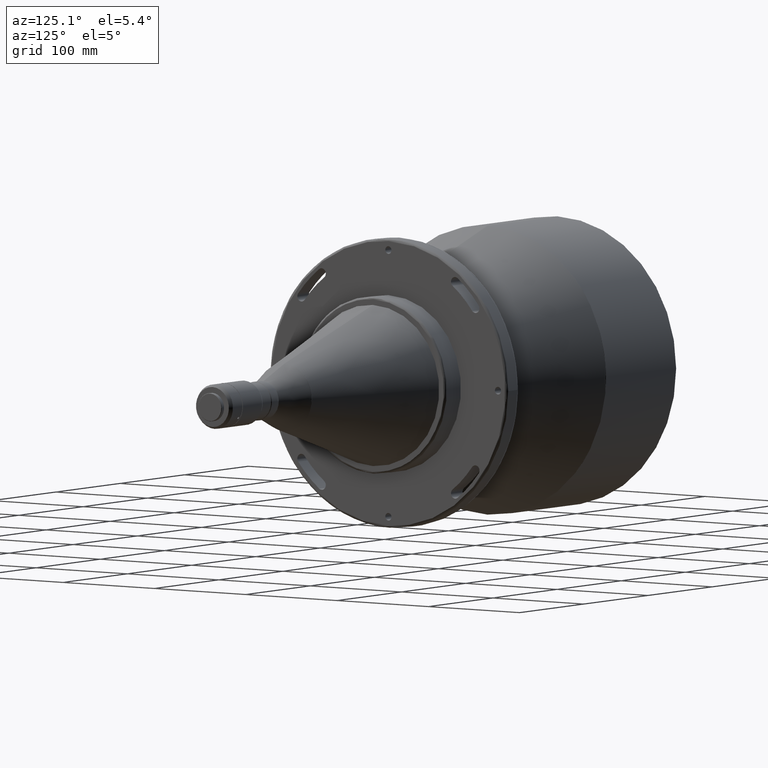
[diagram: clean part render]
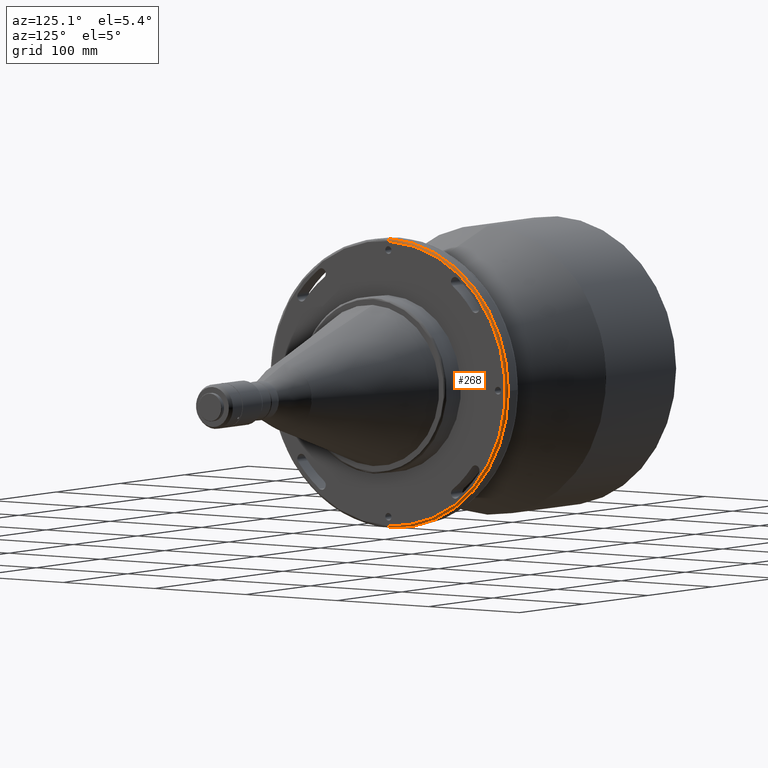
[diagram: same view with one face highlighted and labeled with its STEP entity id]
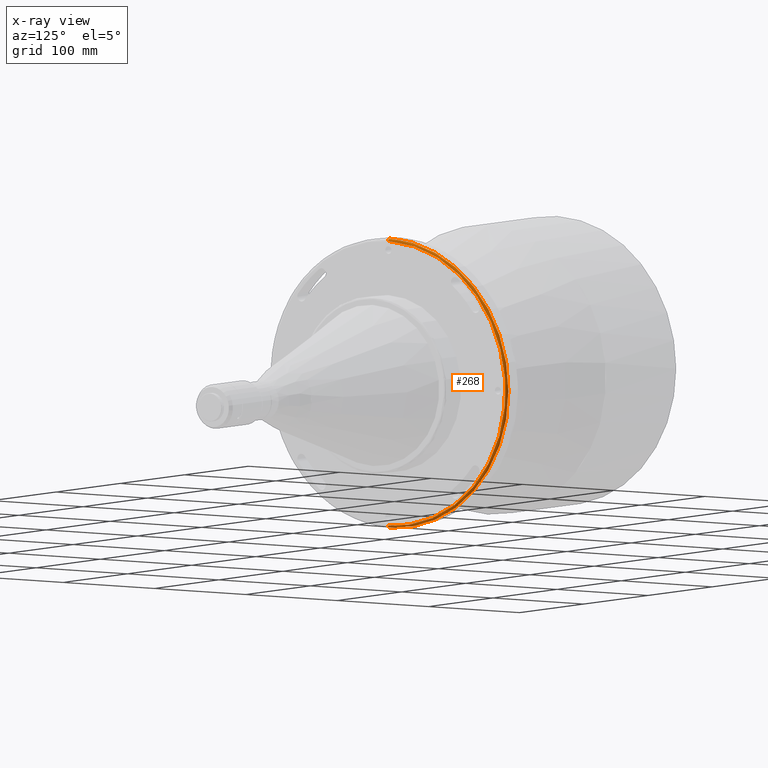
[diagram: x-ray of the same camera — body ghosted, the highlighted face saturated]
A machine part, auxiliary view. The second image highlights one B-rep face of the part: STEP entity #268.
The next image is the same camera in x-ray: the body ghosted, the highlighted face saturated — about 0% of this face is hidden behind the body in this view.
In plain terms, the highlighted face is a freeform B-spline surface patch.
Its self-contained STEP definition (entity closure, byte-faithful):
#5 = VERTEX_POINT ( 'NONE', #312 ) ;
#78 = CARTESIAN_POINT ( 'NONE',  ( -6.849999999681512200, 256.0000000018774200, -128.0000000012986400 ) ) ;
#130 = CARTESIAN_POINT ( 'NONE',  ( -8.849999999720671100, -3.999516856048957800E-008, -130.0000000000796400 ) ) ;
#148 = CARTESIAN_POINT ( 'NONE',  ( -6.859991668999999300, 0.0000000000000000000, -127.8003331669999900 ) ) ;
#157 = ORIENTED_EDGE ( 'NONE', *, *, #3290, .T. ) ;
#172 = DIRECTION ( 'NONE',  ( 1.000000000000000000, -0.0000000000000000000, -0.0000000000000000000 ) ) ;
#194 = EDGE_CURVE ( 'NONE', #279, #2828, #2457, .T. ) ;
#212 = CARTESIAN_POINT ( 'NONE',  ( -8.849999999720671100, -1.167317169573529500E-008, 130.0000000000796400 ) ) ;
#268 = ADVANCED_FACE ( 'NONE', ( #2387 ), #1656, .T. ) ;
#279 = VERTEX_POINT ( 'NONE', #130 ) ;
#312 = CARTESIAN_POINT ( 'NONE',  ( -6.849999999808906300, 0.0000000000000000000, -127.9999999753477500 ) ) ;
#348 = DIRECTION ( 'NONE',  ( 1.000000000000000000, -0.0000000000000000000, -0.0000000000000000000 ) ) ;
#357 = CARTESIAN_POINT ( 'NONE',  ( -6.849999999681512200, 256.0000000018774200, 128.0000000012986400 ) ) ;
#458 = VERTEX_POINT ( 'NONE', #2088 ) ;
#619 = CARTESIAN_POINT ( 'NONE',  ( -6.850000000925546400, 0.0000000000000000000, -129.1715728749336700 ) ) ;
#653 = CARTESIAN_POINT ( 'NONE',  ( -7.689892470000000200, 0.0000000000000000000, 130.1264408450000500 ) ) ;
#748 =( BOUNDED_CURVE ( )  B_SPLINE_CURVE ( 3, ( #1910, #1887, #619, #2419 ),
 .UNSPECIFIED., .F., .F. ) 
 B_SPLINE_CURVE_WITH_KNOTS ( ( 4, 4 ),
 ( 0.06314145700000076100, 0.9368585429999943800 ),
 .UNSPECIFIED. ) 
 CURVE ( )  GEOMETRIC_REPRESENTATION_ITEM ( )  RATIONAL_B_SPLINE_CURVE ( ( 0.9565783021659931600, 0.7697947703959773200, 0.7697947703959764400, 0.9565783021659899400 ) ) 
 REPRESENTATION_ITEM ( '' )  );
#799 =( BOUNDED_CURVE ( )  B_SPLINE_CURVE ( 3, ( #3159, #357, #78, #863 ),
 .UNSPECIFIED., .F., .F. ) 
 B_SPLINE_CURVE_WITH_KNOTS ( ( 4, 4 ),
 ( 0.0000000000000000000, 1.000000000000000000 ),
 .UNSPECIFIED. ) 
 CURVE ( )  GEOMETRIC_REPRESENTATION_ITEM ( )  RATIONAL_B_SPLINE_CURVE ( ( 0.9565783021300933200, 0.3188594340433640900, 0.3188594340433640900, 0.9565783021300933200 ) ) 
 REPRESENTATION_ITEM ( '' )  );
#863 = CARTESIAN_POINT ( 'NONE',  ( -6.849999999808906300, 0.0000000000000000000, -127.9999999753477500 ) ) ;
#910 = CARTESIAN_POINT ( 'NONE',  ( -7.689892470000001100, 260.2528816910000800, -130.1264408450000200 ) ) ;
#941 = CARTESIAN_POINT ( 'NONE',  ( -7.689892470000000200, 0.0000000000000000000, -130.1264408450000500 ) ) ;
#1115 = ORIENTED_EDGE ( 'NONE', *, *, #3040, .T. ) ;
#1155 = CARTESIAN_POINT ( 'NONE',  ( -9.049666833000001600, 0.0000000000000000000, 129.9900083310000100 ) ) ;
#1166 = DIRECTION ( 'NONE',  ( 1.734723475976807100E-016, 0.0000000000000000000, 1.000000000000000000 ) ) ;
#1174 = CIRCLE ( 'NONE', #2883, 130.0000000000000000 ) ;
#1178 = CARTESIAN_POINT ( 'NONE',  ( -7.689892470000001100, 260.2528816910000800, 130.1264408450000200 ) ) ;
#1191 = CARTESIAN_POINT ( 'NONE',  ( -6.723559155000000200, 258.3202150609998900, -129.1601075300000000 ) ) ;
#1193 = EDGE_LOOP ( 'NONE', ( #1428, #157, #2604, #1115, #3205 ) ) ;
#1222 = VERTEX_POINT ( 'NONE', #1904 ) ;
#1409 = CARTESIAN_POINT ( 'NONE',  ( -8.850000000000024500, 0.0000000000000000000, 0.0000000000000000000 ) ) ;
#1422 = CARTESIAN_POINT ( 'NONE',  ( -6.723559154999999300, 0.0000000000000000000, -129.1601075300000000 ) ) ;
#1428 = ORIENTED_EDGE ( 'NONE', *, *, #194, .T. ) ;
#1441 = CARTESIAN_POINT ( 'NONE',  ( -6.723559154999999300, 0.0000000000000000000, 129.1601075300000000 ) ) ;
#1581 = AXIS2_PLACEMENT_3D ( 'NONE', #1409, #348, #1659 ) ;
#1656 =( BOUNDED_SURFACE ( )  B_SPLINE_SURFACE ( 3, 3, ( 
 ( #1155, #2218, #2436, #2695 ),
 ( #653, #1178, #910, #941 ),
 ( #1441, #2448, #1191, #1422 ),
 ( #3201, #2684, #1693, #148 ) ),
 .UNSPECIFIED., .F., .F., .F. ) 
 B_SPLINE_SURFACE_WITH_KNOTS ( ( 4, 4 ),
 ( 4, 4 ),
 ( 0.0000000000000000000, 1.000000000000000000 ),
 ( 0.0000000000000000000, 1.000000000000000000 ),
 .UNSPECIFIED. ) 
 GEOMETRIC_REPRESENTATION_ITEM ( )  RATIONAL_B_SPLINE_SURFACE ( (
 ( 1.000000000000000000, 0.3333333333333330400, 0.3333333333333330400, 1.000000000000000000),
 ( 0.7553208711179740800, 0.2517736237059909900, 0.2517736237059909900, 0.7553208711179740800),
 ( 0.7553208711179740800, 0.2517736237059909900, 0.2517736237059909900, 0.7553208711179740800),
 ( 1.000000000000000000, 0.3333333333333330400, 0.3333333333333330400, 1.000000000000000000) ) ) 
 REPRESENTATION_ITEM ( '' )  SURFACE ( )  );
#1659 = DIRECTION ( 'NONE',  ( 1.734723475976807100E-016, 1.776356839400250500E-015, 1.000000000000000000 ) ) ;
#1693 = CARTESIAN_POINT ( 'NONE',  ( -6.859991669000000200, 255.6006663329999600, -127.8003331670000100 ) ) ;
#1887 = CARTESIAN_POINT ( 'NONE',  ( -7.678427125066346700, 0.0000000000000000000, -129.9999999990745300 ) ) ;
#1904 = CARTESIAN_POINT ( 'NONE',  ( -6.849999999808906300, 0.0000000000000000000, 127.9999999753477200 ) ) ;
#1910 = CARTESIAN_POINT ( 'NONE',  ( -8.849999999720671100, -3.999516856048957800E-008, -130.0000000000796400 ) ) ;
#2017 =( BOUNDED_CURVE ( )  B_SPLINE_CURVE ( 3, ( #2516, #2299, #3046, #212 ),
 .UNSPECIFIED., .F., .F. ) 
 B_SPLINE_CURVE_WITH_KNOTS ( ( 4, 4 ),
 ( 0.06314145699996727400, 0.9368585429999994900 ),
 .UNSPECIFIED. ) 
 CURVE ( )  GEOMETRIC_REPRESENTATION_ITEM ( )  RATIONAL_B_SPLINE_CURVE ( ( 0.9565783021660142500, 0.7697947703959763200, 0.7697947703959692200, 0.9565783021659931600 ) ) 
 REPRESENTATION_ITEM ( '' )  );
#2088 = CARTESIAN_POINT ( 'NONE',  ( -8.849999999720671100, -1.167317169573529500E-008, 130.0000000000796400 ) ) ;
#2090 = CARTESIAN_POINT ( 'NONE',  ( -8.850000000000024500, 130.0000000000000000, 1.592040838891559500E-014 ) ) ;
#2218 = CARTESIAN_POINT ( 'NONE',  ( -9.049666833000001600, 259.9800166609998700, 129.9900083310000100 ) ) ;
#2299 = CARTESIAN_POINT ( 'NONE',  ( -6.850000000925473600, 0.0000000000000000000, 129.1715728749335900 ) ) ;
#2387 = FACE_OUTER_BOUND ( 'NONE', #1193, .T. ) ;
#2419 = CARTESIAN_POINT ( 'NONE',  ( -6.849999999808906300, 0.0000000000000000000, -127.9999999753477500 ) ) ;
#2436 = CARTESIAN_POINT ( 'NONE',  ( -9.049666833000001600, 259.9800166609998700, -129.9900083310000100 ) ) ;
#2448 = CARTESIAN_POINT ( 'NONE',  ( -6.723559155000000200, 258.3202150609998900, 129.1601075300000000 ) ) ;
#2457 = CIRCLE ( 'NONE', #1581, 130.0000000000000000 ) ;
#2516 = CARTESIAN_POINT ( 'NONE',  ( -6.849999999808906300, 0.0000000000000000000, 127.9999999753477200 ) ) ;
#2604 = ORIENTED_EDGE ( 'NONE', *, *, #2788, .F. ) ;
#2684 = CARTESIAN_POINT ( 'NONE',  ( -6.859991669000000200, 255.6006663329999600, 127.8003331670000100 ) ) ;
#2695 = CARTESIAN_POINT ( 'NONE',  ( -9.049666833000001600, 0.0000000000000000000, -129.9900083310000100 ) ) ;
#2788 = EDGE_CURVE ( 'NONE', #1222, #458, #2017, .T. ) ;
#2828 = VERTEX_POINT ( 'NONE', #2090 ) ;
#2883 = AXIS2_PLACEMENT_3D ( 'NONE', #2981, #172, #1166 ) ;
#2981 = CARTESIAN_POINT ( 'NONE',  ( -8.850000000000024500, 0.0000000000000000000, 0.0000000000000000000 ) ) ;
#3040 = EDGE_CURVE ( 'NONE', #1222, #5, #799, .T. ) ;
#3046 = CARTESIAN_POINT ( 'NONE',  ( -7.678427125066281900, 0.0000000000000000000, 129.9999999990745000 ) ) ;
#3050 = EDGE_CURVE ( 'NONE', #279, #5, #748, .T. ) ;
#3159 = CARTESIAN_POINT ( 'NONE',  ( -6.849999999808906300, 0.0000000000000000000, 127.9999999753477200 ) ) ;
#3201 = CARTESIAN_POINT ( 'NONE',  ( -6.859991668999999300, 0.0000000000000000000, 127.8003331669999900 ) ) ;
#3205 = ORIENTED_EDGE ( 'NONE', *, *, #3050, .F. ) ;
#3290 = EDGE_CURVE ( 'NONE', #2828, #458, #1174, .T. ) ;